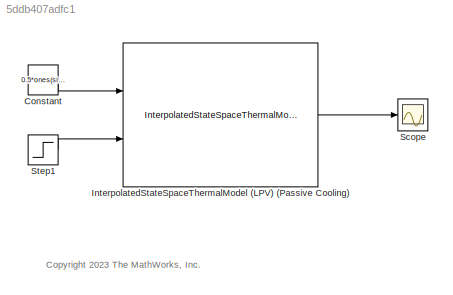
MODEL slx_5ddb407adfc1
KIND model
CONFIG AbsTol = 1e-3
CONFIG EnableMultiTasking = off
CONFIG FixedStep = 0.2
CONFIG MaxStep = auto
CONFIG MinStep = auto
CONFIG RelTol = 1e-3
CONFIG SampleTimeConstraint = Unconstrained
CONFIG SolverName = VariableStepAuto
CONFIG StartTime = 0.0
CONFIG StopTime = 4000
WORKSPACE source: mxarray member
WORKSPACE AdjacencyMat = [0 0 0 0 0 0 0 0 0 0 0 0 ... (22500 elements, 150x150)]
WORKSPACE Amat = [-2.52168311675e-20 0.000185215342392 0.000393846973431 9.92986102674e-12 0.00031646152302 0.000393854116246 9.92986102674e-12 0.000324664141987 1.81447431396e-13 1.18068931505e-12 1.12921110135e-12 5.64605550675e-13 ... (22500 elements, 150x150)]
WORKSPACE Bmat = [1e-20 0 0 0 0 0 0 0 0 0 0 0 ... (22500 elements, 150x150)]
WORKSPACE CapMat = [1e+20 3424.01569452 201.412687913 100.706343957 1759.15244838 201.412687913 100.706343957 1759.15244838 5511.23811622 846.962860806 885.574007203 1771.14801441 ... (150 elements, 150x1)]
WORKSPACE CoolantArrayIdxs = [21 26]
WORKSPACE CoolantNodeIdxs = [21 26]
WORKSPACE Friction_Loss_Mat = [0 0 0 0 0 0 0 0 0 0 0 0 ... (600 elements, 60x10)]
WORKSPACE InletCoolIdxs = 26
WORKSPACE Iron_Loss_Rotor_Back_Iron_Mat = [5.88721488028e-06 1.56097290893e-05 2.53322432983e-05 3.50547575073e-05 4.22932634361e-05 4.83272215068e-05 5.43611795774e-05 6.0395137648e-05 6.64290957187e-05 7.24630537893e-05 7.84507163281e-05 8.35639993023e-05 ... (600 elements, 60x10)]
WORKSPACE Iron_Loss_Rotor_Pole_Mat = [0 0 0 0 0 0 0 0 0 0 0 0 ... (600 elements, 60x10)]
WORKSPACE Iron_Loss_Rotor_Tooth_Mat = [0.0278606638652 0.0738715035935 0.119882343322 0.16589318305 0.184288576483 0.189292659205 0.194296741928 0.19930082465 0.204304907373 0.209308990095 0.214192013795 0.216788606579 ... (600 elements, 60x10)]
WORKSPACE Iron_Loss_Stator_Back_Iron_Mat = [0.538257512426 1.42720259745 2.31614768248 3.2050927675 3.70144029641 4.00740901333 4.31337773026 4.61934644718 4.9253151641 5.23128388103 5.53405994351 5.77653662762 ... (600 elements, 60x10)]
WORKSPACE Iron_Loss_Stator_Tooth_Mat = [0.271379868831 0.719570446697 1.16776102456 1.61595160243 1.84620127177 1.97076681088 2.09533234999 2.2198978891 2.34446342821 2.46902896732 2.59210855121 2.687123032 ... (600 elements, 60x10)]
WORKSPACE LossDistrForEachType = [0 0 0 0 0 0 0 0 0 0 0 0 ... (2400 elements, 16x150)]
WORKSPACE Magnet_Loss_Mat = [0 0 0 0 0 0 0 0 0 0 0 0 ... (600 elements, 60x10)]
WORKSPACE OutletCoolIdxs = 21
WORKSPACE RotorCopperTempCoefResistivity = 0.00393
WORKSPACE Rotor_Cage_Loss_Mat = [0.452081247683 6.23621443388 12.0203476201 17.8044808063 27.0746990775 38.0353933249 48.9960875724 59.9567818198 70.9174760673 81.8781703148 93.2562227653 112.516882212 ... (600 elements, 60x10)]
WORKSPACE ShaftTorqueVec = [0.50751379462 6.70424518063 12.9009765666 19.0977079526 25.2944393387 31.4911707247 37.6879021107 43.8846334967 50.0813648827 56.2780962687 62.4748276547 68.6715590407 ... (60 elements, 1x60)]
WORKSPACE Sig: Simulink.Signal (value not decoded)
WORKSPACE SpeedVec = [200 1511.11111111 2822.22222222 4133.33333333 5444.44444444 6755.55555556 8066.66666667 9377.77777778 10688.8888889 12000]
WORKSPACE StateSpaceND: object (value not decoded)
WORKSPACE StatorCopperTempCoefResistivity = 0.00393
WORKSPACE Stator_Copper_Loss_Mat = [2.8235353719 37.2375386139 71.6515418559 106.065545098 145.96632659 188.527762252 231.089197915 273.650633577 316.212069239 358.773504901 402.558474022 469.452209983 ... (600 elements, 60x10)]
WORKSPACE Stray_Load_Loss_Mat = [0.107367111702 1.41831699713 2.72926688255 4.04021676798 5.3511666534 6.66211653882 7.97306642425 9.28401630967 10.5949661951 11.9059160805 13.2168659659 14.5278158514 ... (600 elements, 60x10)]
WORKSPACE Stray_Loss_Stator_Iron_Proportion = 0.95
WORKSPACE TinVal = 20
WORKSPACE TnodesInit = [20 20 20 20 20 20 20 20 20 20 20 20 ... (150 elements, 150x1)]
WORKSPACE TrefRotor = 140
WORKSPACE TrefStator = 100
WORKSPACE TrotorRef = 140
WORKSPACE TwindingRef = 100
WORKSPACE Windage_Loss_Mat = [0 0 0 0 0 0 0 0 0 0 0 0 ... (600 elements, 60x10)]
WORKSPACE flowrateVal = 5
WORKSPACE lossDistrEachType = [0 0 0 0 0 0 0 0 0 0 0 0 ... (2400 elements, 16x150)]
WORKSPACE lossEachTypeVal = [30 30 30 30 30 30 30 30 30 30 30 30 ... (16 elements, 16x1)]
WORKSPACE nodelossVal = [1 1 1 1 1 1 1 1 1 1 1 1 ... (150 elements, 150x1)]
WORKSPACE rotorCopperTempCoeff = 0.00393
WORKSPACE speedVal = 4000
WORKSPACE statorCopperTempCoeff = 0.00393
WORKSPACE torqueVal = 30
BLOCK [Constant] Constant
  Value = 0.5*ones(size(TnodesInit))
BLOCK [Reference] InterpolatedStateSpaceThermalModel (LPV) (Passive Cooling)  REF=mcadROM_lib/InterpolatedStateSpaceThermalModel (LPV) (Passive Cooling)
  Ports = [2, 1]
  SourceBlock = mcadROM_lib/InterpolatedStateSpaceThermalModel (LPV) (Passive Cooling)
BLOCK [Scope] Scope
  Floating = off
  NumInputPorts = 1
  Ports = [1]
  ScopeSpecificationString = Simulink.scopes.TimeScopeBlockCfg('CurrentConfiguration', extmgr.ConfigurationSet(extmgr.Configuration('Core','General UI',true),extmgr.Configuration('Core','Source UI',true),extmgr.Configuration('Sources','WiredSimulink',true),extmgr.Configuration('Visuals','Time Domain',true,'SerializedDisplays',{struct('MinYLimReal','18.34291','MaxYLimReal','34.78697','YLabelReal','','MinYLimMag','18.34291','Ma...<+7457ch>
BLOCK [Step] Step1
  After = 3000
  Before = 1000
  SampleTime = 0
  Time = 500
ANNOTATION (root): <copyright redacted>
LINE Constant:1 -> InterpolatedStateSpaceThermalModel (LPV) (Passive Cooling):1
LINE InterpolatedStateSpaceThermalModel (LPV) (Passive Cooling):1 -> Scope:1
LINE Step1:1 -> InterpolatedStateSpaceThermalModel (LPV) (Passive Cooling):2
